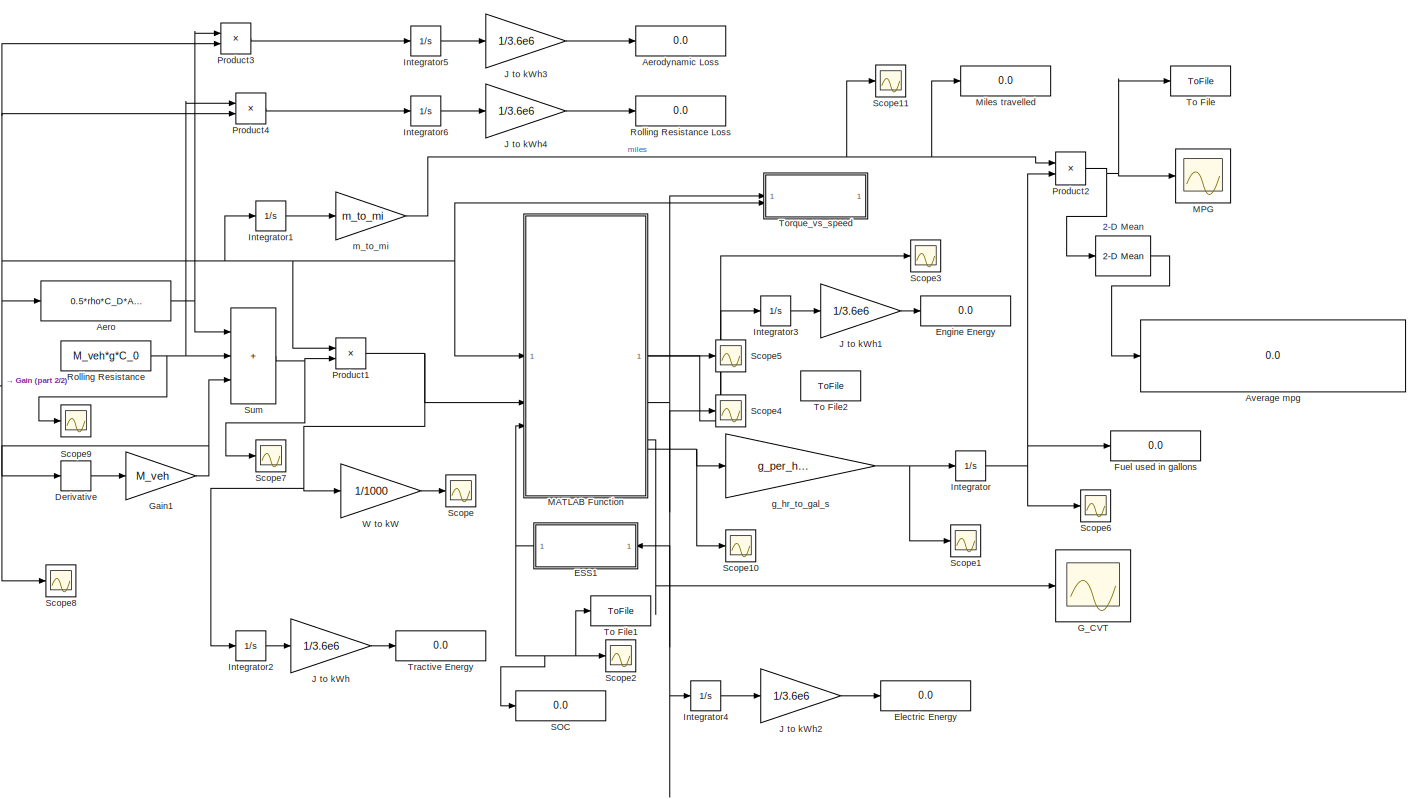
[diagram: root canvas - part 1/2, most of the canvas]
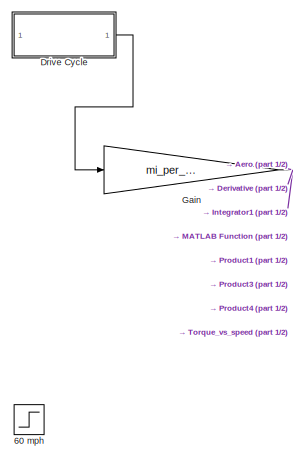
[diagram: root canvas - part 2/2, middle left region]
MODEL slx_4d31f82ad3aa
KIND model
CONFIG AbsTol = auto
CONFIG EnableMultiTasking = off
CONFIG FixedStep = auto
CONFIG MaxStep = auto
CONFIG MinStep = auto
CONFIG RelTol = 1e-3
CONFIG SampleTimeConstraint = Unconstrained
CONFIG SolverName = VariableStepAuto
CONFIG StartTime = 0.0
CONFIG StopTime = 601
WORKSPACE source: mxarray member
WORKSPACE C_0 = 0.015
WORKSPACE M_veh = 1746
WORKSPACE g = 9.8
BLOCK [Reference] 2-D Mean  REF=visionstatistics/2-D Mean
  SourceBlock = visionstatistics/2-D Mean
  SourceType = 2-D Mean
  UserDataPersistent = on
BLOCK [Step] 60 mph
  After = 60
  Before = 60
  SampleTime = 0
BLOCK [Fcn] Aero
  Expr = 0.5*rho*C_D*A_F*u(1)^2
BLOCK [Display] Aerodynamic Loss
  Decimation = 1
BLOCK [Display] Average mpg
  Decimation = 3
  Format = long
BLOCK [Derivative] Derivative
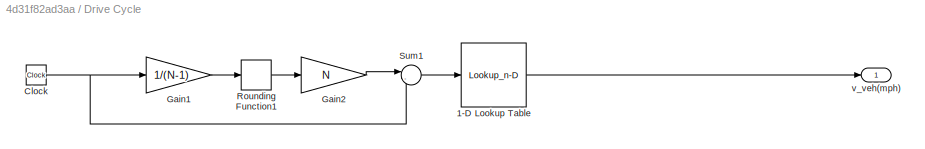
BLOCK [SubSystem] Drive Cycle
BLOCK [Lookup_n-D] Drive Cycle/1-D Lookup Table
  BreakpointsForDimension1 = schedule(:,1)
  InputPortMap = u0
  InternalRulePriority = Speed
  NumberOfTableDimensions = 1
  RndMeth = Simplest
  Table = schedule(:,2)
BLOCK [Clock] Drive Cycle/Clock
BLOCK [Gain] Drive Cycle/Gain1
  Gain = 1/(N-1)
BLOCK [Gain] Drive Cycle/Gain2
  Gain = N
BLOCK [Rounding] Drive Cycle/Rounding Function1
BLOCK [Sum] Drive Cycle/Sum1
  Inputs = |-+
BLOCK [Outport] Drive Cycle/v_veh(mph)
  VectorParamsAs1DForOutWhenUnconnected = off
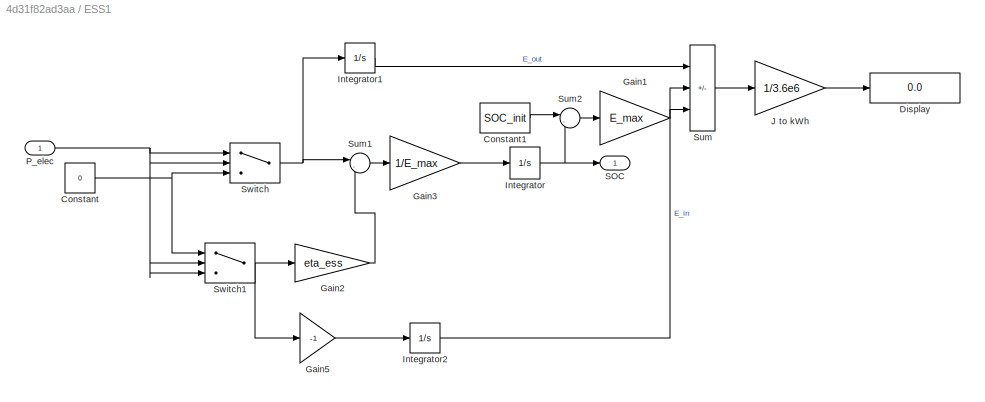
BLOCK [SubSystem] ESS1
BLOCK [Constant] ESS1/Constant
  Value = 0
BLOCK [Constant] ESS1/Constant1
  Value = SOC_init
BLOCK [Display] ESS1/Display
  Decimation = 1
BLOCK [Gain] ESS1/Gain1
  Gain = E_max
  OutDataTypeStr = fixdt('double', 'DataTypeOverride', 'Off')
BLOCK [Gain] ESS1/Gain2
  Gain = eta_ess
BLOCK [Gain] ESS1/Gain3
  Gain = 1/E_max
  OutDataTypeStr = fixdt('double', 'DataTypeOverride', 'Off')
BLOCK [Gain] ESS1/Gain5
  Gain = -1
  OutDataTypeStr = fixdt('double', 'DataTypeOverride', 'Off')
BLOCK [Integrator] ESS1/Integrator
  InitialCondition = SOC_init
  LimitOutput = on
  LowerSaturationLimit = 0
  UpperSaturationLimit = 1
BLOCK [Integrator] ESS1/Integrator1
BLOCK [Integrator] ESS1/Integrator2
BLOCK [Gain] ESS1/J to kWh
  Gain = 1/3.6e6
  OutDataTypeStr = fixdt('double', 'DataTypeOverride', 'Off')
BLOCK [Inport] ESS1/P_elec
BLOCK [Outport] ESS1/SOC
BLOCK [Sum] ESS1/Sum
  IconShape = rectangular
  Inputs = -+-
BLOCK [Sum] ESS1/Sum1
  Inputs = |--
BLOCK [Sum] ESS1/Sum2
  Inputs = |-+
BLOCK [Switch] ESS1/Switch
  InputSameDT = off
  OutDataTypeStr = double
  SaturateOnIntegerOverflow = off
BLOCK [Switch] ESS1/Switch1
  InputSameDT = off
  OutDataTypeStr = double
  SaturateOnIntegerOverflow = off
BLOCK [Display] Electric Energy
  Decimation = 1
BLOCK [Display] Engine Energy 
  Decimation = 1
BLOCK [Display] Fuel used in gallons
  Decimation = 1
BLOCK [Scope] G_CVT
  Floating = off
  NumInputPorts = 1
  ScopeSpecificationString = Simulink.scopes.TimeScopeBlockCfg('CurrentConfiguration', extmgr.ConfigurationSet(extmgr.Configuration('Core','General UI',true,'FigureColor',[1 1 1]),extmgr.Configuration('Core','Source UI',true),extmgr.Configuration('Sources','WiredSimulink',true,'DataLoggingVariableName','ScopeData1'),extmgr.Configuration('Visuals','Time Domain',true,'SerializedDisplays',{struct('MinYLimReal','0.04355','MaxYLim...<+1530ch>
BLOCK [Gain] Gain
  Gain = mi_per_hr_to_m_per_s
BLOCK [Gain] Gain1
  Gain = M_veh
BLOCK [Integrator] Integrator
BLOCK [Integrator] Integrator1
BLOCK [Integrator] Integrator2
BLOCK [Integrator] Integrator3
BLOCK [Integrator] Integrator4
BLOCK [Integrator] Integrator5
BLOCK [Integrator] Integrator6
BLOCK [Gain] J to kWh
  Gain = 1/3.6e6
BLOCK [Gain] J to kWh1
  Gain = 1/3.6e6
BLOCK [Gain] J to kWh2
  Gain = 1/3.6e6
BLOCK [Gain] J to kWh3
  Gain = 1/3.6e6
BLOCK [Gain] J to kWh4
  Gain = 1/3.6e6
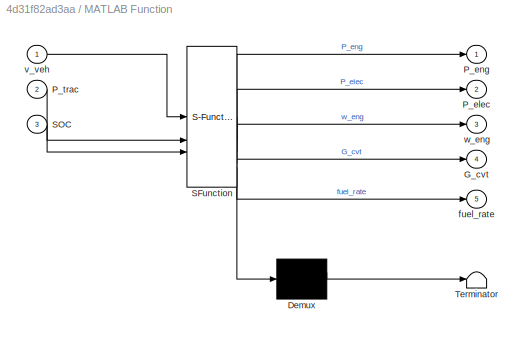
BLOCK [SubSystem] MATLAB Function
  ErrorFcn = Stateflow.Translate.translate
  PermitHierarchicalResolution = ExplicitOnly
  SFBlockType = MATLAB Function
  TreatAsAtomicUnit = on
BLOCK [Demux] MATLAB Function/ Demux 
  Outputs = 1
BLOCK [S-Function] MATLAB Function/ SFunction 
  EnableBusSupport = on
  FunctionName = sf_sfun
  Parameters = eng_map,param
  PortCounts = [3 6]
  SFcnIsStateOwnerBlock = off
  SFunctionDeploymentMode = off
  Tag = Stateflow S-Function 2
BLOCK [Terminator] MATLAB Function/ Terminator 
BLOCK [Outport] MATLAB Function/G_cvt
  Port = 4
  VectorParamsAs1DForOutWhenUnconnected = off
BLOCK [Outport] MATLAB Function/P_elec
  Port = 2
  VectorParamsAs1DForOutWhenUnconnected = off
BLOCK [Outport] MATLAB Function/P_eng
  VectorParamsAs1DForOutWhenUnconnected = off
BLOCK [Inport] MATLAB Function/P_trac
  Port = 2
BLOCK [Inport] MATLAB Function/SOC
  Port = 3
BLOCK [Outport] MATLAB Function/fuel_rate
  Port = 5
  VectorParamsAs1DForOutWhenUnconnected = off
BLOCK [Inport] MATLAB Function/v_veh
BLOCK [Outport] MATLAB Function/w_eng
  Port = 3
  VectorParamsAs1DForOutWhenUnconnected = off
BLOCK [Scope] MPG
  Floating = off
  NumInputPorts = 1
  ScopeSpecificationString = Simulink.scopes.TimeScopeBlockCfg('CurrentConfiguration', extmgr.ConfigurationSet(extmgr.Configuration('Core','General UI',true,'FigureColor',[1 1 1]),extmgr.Configuration('Core','Source UI',true),extmgr.Configuration('Sources','WiredSimulink',true,'DataLoggingVariableName','ScopeData1'),extmgr.Configuration('Visuals','Time Domain',true,'SerializedDisplays',{struct('MinYLimReal','-3.61863','MaxYLi...<+1705ch>
BLOCK [Display] Miles travelled
  Decimation = 1
BLOCK [Product] Product1
BLOCK [Product] Product2
  Inputs = */
BLOCK [Product] Product3
BLOCK [Product] Product4
BLOCK [Constant] Rolling Resistance
  Value = M_veh*g*C_0
BLOCK [Display] Rolling Resistance Loss
  Decimation = 1
BLOCK [Display] SOC
  Decimation = 1
BLOCK [Scope] Scope
  Floating = off
  NumInputPorts = 1
  ScopeSpecificationString = Simulink.scopes.TimeScopeBlockCfg('CurrentConfiguration', extmgr.ConfigurationSet(extmgr.Configuration('Core','General UI',true,'FigureColor',[1 1 1]),extmgr.Configuration('Core','Source UI',true),extmgr.Configuration('Sources','WiredSimulink',true),extmgr.Configuration('Visuals','Time Domain',true,'SerializedDisplays',{struct('MinYLimReal','-56.85061','MaxYLimReal','97.04181','YLabelReal','','Min...<+1535ch>
BLOCK [Scope] Scope1
  Floating = off
  NumInputPorts = 1
  ScopeSpecificationString = Simulink.scopes.TimeScopeBlockCfg('CurrentConfiguration', extmgr.ConfigurationSet(extmgr.Configuration('Core','General UI',true,'FigureColor',[1 1 1]),extmgr.Configuration('Core','Source UI',true),extmgr.Configuration('Sources','WiredSimulink',true,'DataLoggingVariableName','ScopeData1'),extmgr.Configuration('Visuals','Time Domain',true,'SerializedDisplays',{struct('MinYLimReal','-0.00024','MaxYLi...<+1564ch>
BLOCK [Scope] Scope10
  Floating = off
  NumInputPorts = 1
  ScopeSpecificationString = Simulink.scopes.TimeScopeBlockCfg('CurrentConfiguration', extmgr.ConfigurationSet(extmgr.Configuration('Core','General UI',true,'FigureColor',[1 1 1]),extmgr.Configuration('Core','Source UI',true),extmgr.Configuration('Sources','WiredSimulink',true,'DataLoggingVariableName','ScopeData3'),extmgr.Configuration('Visuals','Time Domain',true,'SerializedDisplays',{struct('MinYLimReal','-2475.17549','Max...<+1588ch>
BLOCK [Scope] Scope11
  Floating = off
  NumInputPorts = 1
  ScopeSpecificationString = Simulink.scopes.TimeScopeBlockCfg('CurrentConfiguration', extmgr.ConfigurationSet(extmgr.Configuration('Core','General UI',true,'FigureColor',[1 1 1]),extmgr.Configuration('Core','Source UI',true),extmgr.Configuration('Sources','WiredSimulink',true,'DataLoggingVariableName','ScopeData4'),extmgr.Configuration('Visuals','Time Domain',true,'SerializedDisplays',{struct('MinYLimReal','-1.00109','MaxYLi...<+1542ch>
BLOCK [Scope] Scope2
  Floating = off
  NumInputPorts = 1
  ScopeSpecificationString = Simulink.scopes.TimeScopeBlockCfg('CurrentConfiguration', extmgr.ConfigurationSet(extmgr.Configuration('Core','General UI',true,'FigureColor',[1 1 1]),extmgr.Configuration('Core','Source UI',true),extmgr.Configuration('Sources','WiredSimulink',true,'DataLoggingVariableName','ScopeData2'),extmgr.Configuration('Visuals','Time Domain',true,'SerializedDisplays',{struct('MinYLimReal','0.47766','MaxYLim...<+1538ch>
BLOCK [Scope] Scope3
  Floating = off
  NumInputPorts = 1
  ScopeSpecificationString = Simulink.scopes.TimeScopeBlockCfg('CurrentConfiguration', extmgr.ConfigurationSet(extmgr.Configuration('Core','General UI',true,'FigureColor',[1 1 1]),extmgr.Configuration('Core','Source UI',true),extmgr.Configuration('Sources','WiredSimulink',true,'DataLoggingVariableName','ScopeData1'),extmgr.Configuration('Visuals','Time Domain',true,'SerializedDisplays',{struct('MinYLimReal','-9706.57055','Max...<+1611ch>
BLOCK [Scope] Scope4
  Floating = off
  NumInputPorts = 1
  ScopeSpecificationString = Simulink.scopes.TimeScopeBlockCfg('CurrentConfiguration', extmgr.ConfigurationSet(extmgr.Configuration('Core','General UI',true,'FigureColor',[1 1 1]),extmgr.Configuration('Core','Source UI',true),extmgr.Configuration('Sources','WiredSimulink',true,'DataLoggingVariableName','ScopeData2'),extmgr.Configuration('Visuals','Time Domain',true,'SerializedDisplays',{struct('MinYLimReal','-53082.63881','Ma...<+1587ch>
BLOCK [Scope] Scope5
  Floating = off
  NumInputPorts = 1
  ScopeSpecificationString = Simulink.scopes.TimeScopeBlockCfg('CurrentConfiguration', extmgr.ConfigurationSet(extmgr.Configuration('Core','General UI',true,'FigureColor',[1 1 1]),extmgr.Configuration('Core','Source UI',true),extmgr.Configuration('Sources','WiredSimulink',true,'DataLoggingVariableName','ScopeData3'),extmgr.Configuration('Visuals','Time Domain',true,'SerializedDisplays',{struct('MinYLimReal','632.01666','MaxYL...<+1734ch>
BLOCK [Scope] Scope6
  Floating = off
  NumInputPorts = 1
  ScopeSpecificationString = Simulink.scopes.TimeScopeBlockCfg('CurrentConfiguration', extmgr.ConfigurationSet(extmgr.Configuration('Core','General UI',true,'FigureColor',[1 1 1]),extmgr.Configuration('Core','Source UI',true),extmgr.Configuration('Sources','WiredSimulink',true,'DataLoggingVariableName','ScopeData2'),extmgr.Configuration('Visuals','Time Domain',true,'SerializedDisplays',{struct('MinYLimReal','-0.03653','MaxYLi...<+1573ch>
BLOCK [Scope] Scope7
  Floating = off
  NumInputPorts = 1
  ScopeSpecificationString = Simulink.scopes.TimeScopeBlockCfg('CurrentConfiguration', extmgr.ConfigurationSet(extmgr.Configuration('Core','General UI',true,'FigureColor',[1 1 1]),extmgr.Configuration('Core','Source UI',true),extmgr.Configuration('Sources','WiredSimulink',true,'DataLoggingVariableName','ScopeData1'),extmgr.Configuration('Visuals','Time Domain',true,'SerializedDisplays',{struct('MinYLimReal','-5227.42401','Max...<+1587ch>
BLOCK [Scope] Scope8
  Floating = off
  NumInputPorts = 1
  ScopeSpecificationString = Simulink.scopes.TimeScopeBlockCfg('CurrentConfiguration', extmgr.ConfigurationSet(extmgr.Configuration('Core','General UI',true,'FigureColor',[1 1 1]),extmgr.Configuration('Core','Source UI',true),extmgr.Configuration('Sources','WiredSimulink',true,'DataLoggingVariableName','ScopeData1'),extmgr.Configuration('Visuals','Time Domain',true,'SerializedDisplays',{struct('MinYLimReal','-5495.27098','Max...<+1556ch>
BLOCK [Scope] Scope9
  Floating = off
  NumInputPorts = 1
  ScopeSpecificationString = Simulink.scopes.TimeScopeBlockCfg('CurrentConfiguration', extmgr.ConfigurationSet(extmgr.Configuration('Core','General UI',true,'FigureColor',[1 1 1]),extmgr.Configuration('Core','Source UI',true),extmgr.Configuration('Sources','WiredSimulink',true,'DataLoggingVariableName','ScopeData2'),extmgr.Configuration('Visuals','Time Domain',true,'SerializedDisplays',{struct('MinYLimReal','156.662','MaxYLim...<+1561ch>
BLOCK [Sum] Sum
  IconShape = rectangular
  Inputs = +++
BLOCK [ToFile] To File
  Filename = mpg.mat
BLOCK [ToFile] To File1
  Filename = SOC.mat
BLOCK [ToFile] To File2
  Filename = SOC.mat
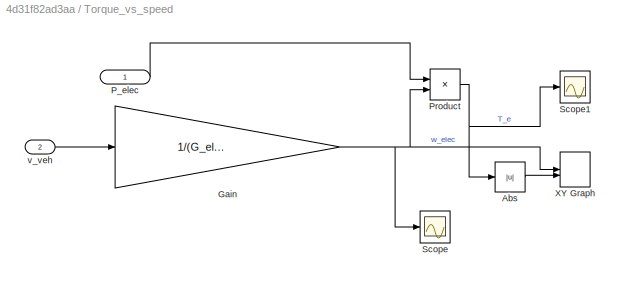
BLOCK [SubSystem] Torque_vs_speed
BLOCK [Abs] Torque_vs_speed/Abs
  SaturateOnIntegerOverflow = off
BLOCK [Gain] Torque_vs_speed/Gain
  Gain = 1/(G_elec * G_diff * r_wheel)
BLOCK [Inport] Torque_vs_speed/P_elec
BLOCK [Product] Torque_vs_speed/Product
  Inputs = */
BLOCK [Scope] Torque_vs_speed/Scope
  Floating = off
  NumInputPorts = 1
  ScopeSpecificationString = Simulink.scopes.TimeScopeBlockCfg('CurrentConfiguration', extmgr.ConfigurationSet(extmgr.Configuration('Core','General UI',true,'FigureColor',[1 1 1]),extmgr.Configuration('Core','Source UI',true),extmgr.Configuration('Sources','WiredSimulink',true,'DataLoggingVariableName','ScopeData4'),extmgr.Configuration('Visuals','Time Domain',true,'SerializedDisplays',{struct('MinYLimReal','-59.17472','MaxYL...<+1593ch>
BLOCK [Scope] Torque_vs_speed/Scope1
  Floating = off
  NumInputPorts = 1
  ScopeSpecificationString = Simulink.scopes.TimeScopeBlockCfg('CurrentConfiguration', extmgr.ConfigurationSet(extmgr.Configuration('Core','General UI',true,'FigureColor',[1 1 1]),extmgr.Configuration('Core','Source UI',true),extmgr.Configuration('Sources','WiredSimulink',true,'DataLoggingVariableName','ScopeData5'),extmgr.Configuration('Visuals','Time Domain',true,'SerializedDisplays',{struct('MinYLimReal','-391.42533','MaxY...<+1579ch>
BLOCK [Record] Torque_vs_speed/XY Graph
  CompatibilityTag = XY
  FileSettingsInternal = {"entries":[{"content":{"excelSettings":{"content":{},"type":"Streamout.ExcelSettings"}},"type":"Streamout.FileSettingStorage","uuid":"cff789f3-a02d-420f-a1ba-4b45535f7346"}],"packageUris":["http://schema.mathworks.com/mf0/streamout_blocks/R2020a"],"version":"1.0"}
  Layout = [1 1]
  SignalsInternal = {"entries":[{"content":{"signals":[{"content":{"blockPath":["Simulink_Model_Main/Torque_vs_speed/XY Graph"],"channel":[],"dimensions":[1],"domain":"Simulink_Model_Main/Torque_vs_speed/XY Graph","lineColor":"#a2142f","plots":[1],"port":1,"sid":[""],"signalID":275,"signalName":"w_elec"},"type":"RecordBlkView.Signal","uuid":"228da600-e882-4eb6-83c5-402367abdd47"},{"content":{"blockPath":["Simulink_Mo...<+464ch>
  VisualizationBindings = {"xyplotplugin":{"info":[{"series":[{"bindingParametersList":[{"parameter":"X-Axis","signalID":275,"signalName":"w_elec"},{"parameter":"Y-Axis","signalID":279,"signalName":"Abs"}],"seriesID":63765}],"subplotID":1}]}}
  st = -1
BLOCK [Inport] Torque_vs_speed/v_veh
  Port = 2
BLOCK [Display] Tractive Energy
  Decimation = 1
BLOCK [Gain] W to kW
  Gain = 1/1000
BLOCK [Gain] g_hr_to_gal_s
  Gain = g_per_hr_to_gal_per_s
BLOCK [Gain] m_to_mi
  Gain = m_to_mi
LINE 2-D Mean:1 -> Average mpg:1
NET Aero:1 -> Product3:1, Sum:1
LINE Derivative:1 -> Gain1:1
LINE Drive Cycle/1-D Lookup Table:1 -> Drive Cycle/v_veh(mph):1
NET Drive Cycle/Clock:1 -> Drive Cycle/Gain1:1, Drive Cycle/Sum1:2
LINE Drive Cycle/Gain1:1 -> Drive Cycle/Rounding Function1:1
LINE Drive Cycle/Gain2:1 -> Drive Cycle/Sum1:1
LINE Drive Cycle/Rounding Function1:1 -> Drive Cycle/Gain2:1
LINE Drive Cycle/Sum1:1 -> Drive Cycle/1-D Lookup Table:1
LINE Drive Cycle:1 -> Gain:1
LINE ESS1/Constant1:1 -> ESS1/Sum2:1
NET ESS1/Constant:1 -> ESS1/Switch1:1, ESS1/Switch:3
LINE ESS1/Gain1:1 -> ESS1/Sum:3
LINE ESS1/Gain2:1 -> ESS1/Sum1:2
LINE ESS1/Gain3:1 -> ESS1/Integrator:1
LINE ESS1/Gain5:1 -> ESS1/Integrator2:1
LINE ESS1/Integrator1:1 -> ESS1/Sum:1
LINE ESS1/Integrator2:1 -> ESS1/Sum:2
NET ESS1/Integrator:1 -> ESS1/SOC:1, ESS1/Sum2:2
LINE ESS1/J to kWh:1 -> ESS1/Display:1
NET ESS1/P_elec:1 -> ESS1/Switch1:2, ESS1/Switch1:3, ESS1/Switch:1, ESS1/Switch:2
LINE ESS1/Sum1:1 -> ESS1/Gain3:1
LINE ESS1/Sum2:1 -> ESS1/Gain1:1
LINE ESS1/Sum:1 -> ESS1/J to kWh:1
NET ESS1/Switch1:1 -> ESS1/Gain2:1, ESS1/Gain5:1
NET ESS1/Switch:1 -> ESS1/Integrator1:1, ESS1/Sum1:1
NET ESS1:1 -> MATLAB Function:3, SOC:1, Scope2:1, To File1:1
NET Gain1:1 -> Scope8:1, Sum:3
NET Gain:1 -> Aero:1, Derivative:1, Integrator1:1, MATLAB Function:1, Product1:1, Product3:2, Product4:2, Torque_vs_speed:2
LINE Integrator1:1 -> m_to_mi:1
LINE Integrator2:1 -> J to kWh:1
LINE Integrator3:1 -> J to kWh1:1
LINE Integrator4:1 -> J to kWh2:1
LINE Integrator5:1 -> J to kWh3:1
LINE Integrator6:1 -> J to kWh4:1
NET Integrator:1 -> Fuel used in gallons:1, Product2:2, Scope6:1
LINE J to kWh1:1 -> Engine Energy :1
LINE J to kWh2:1 -> Electric Energy:1
LINE J to kWh3:1 -> Aerodynamic Loss:1
LINE J to kWh4:1 -> Rolling Resistance Loss:1
LINE J to kWh:1 -> Tractive Energy:1
NET MATLAB Function:1 -> Integrator3:1, Scope3:1
NET MATLAB Function:2 -> ESS1:1, Integrator4:1, Scope4:1, Torque_vs_speed:1
LINE MATLAB Function:3 -> Scope5:1
LINE MATLAB Function:4 -> G_CVT:1
NET MATLAB Function:5 -> Scope10:1, g_hr_to_gal_s:1
NET Product1:1 -> Integrator2:1, MATLAB Function:2, W to kW:1
NET Product2:1 -> 2-D Mean:1, MPG:1, To File:1
LINE Product3:1 -> Integrator5:1
LINE Product4:1 -> Integrator6:1
NET Rolling Resistance:1 -> Product4:1, Scope9:1, Sum:2
NET Sum:1 -> Product1:2, Scope7:1
LINE Torque_vs_speed/Abs:1 -> Torque_vs_speed/XY Graph:2
NET Torque_vs_speed/Gain:1 -> Torque_vs_speed/Product:2, Torque_vs_speed/Scope:1, Torque_vs_speed/XY Graph:1
LINE Torque_vs_speed/P_elec:1 -> Torque_vs_speed/Product:1
NET Torque_vs_speed/Product:1 -> Torque_vs_speed/Abs:1, Torque_vs_speed/Scope1:1
LINE Torque_vs_speed/v_veh:1 -> Torque_vs_speed/Gain:1
LINE W to kW:1 -> Scope:1
NET g_hr_to_gal_s:1 -> Integrator:1, Scope1:1
NET m_to_mi:1 -> Miles travelled:1, Product2:1, Scope11:1
note: NET lines group one-source signal fan-out (src -> all destinations, sorted); 1:1 wires keep LINE
CHART MATLAB Function states=1 transitions=1
  STATE_LABEL 'eML_blk_kernel()'
  STATE_LABEL 'SCRIPT:\nfunction [P_eng, P_elec, w_eng, G_cvt, fuel_rate] = fcn(v_veh, P_trac, SOC, param, eng_map)\n%#codegen\n%inputs:\n    % v_veh, m/s\n    % P_trac, W\n    % SOC\n    % param, structure of parameters\n    % eng_map\n\n% outputs:\n    %   P_gen, P_elec in W\n    %   w_eng, rpm\n    %   G_cvt (cvt ratio)\n    %   Fuel rate, g/hr\n\nv_veh_min = param.v_veh_min;    % minimum vehicle speed for engine to stay eng...<+2168ch>'
CHART  states=0 transitions=0
